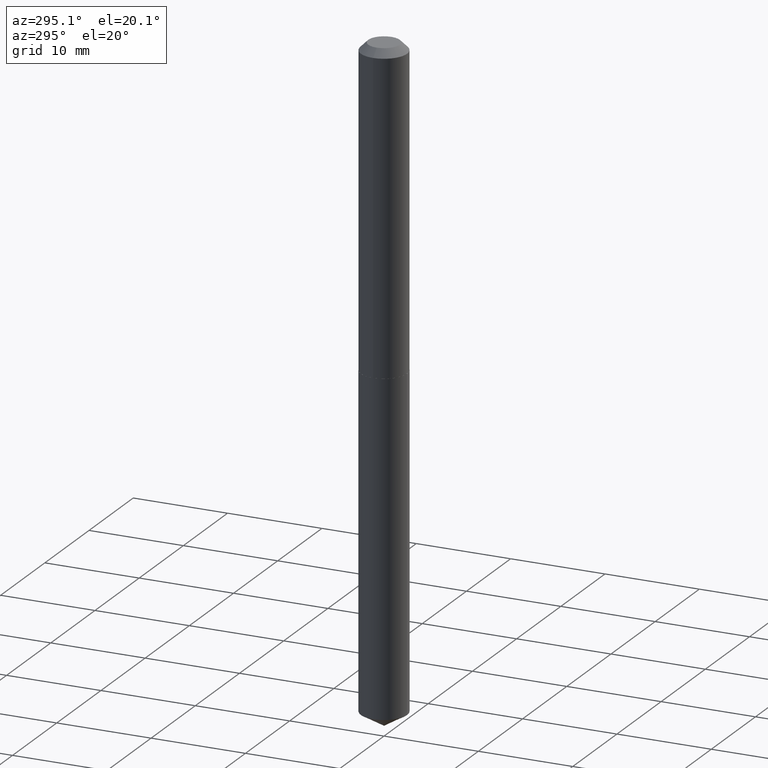
[diagram: clean part render]
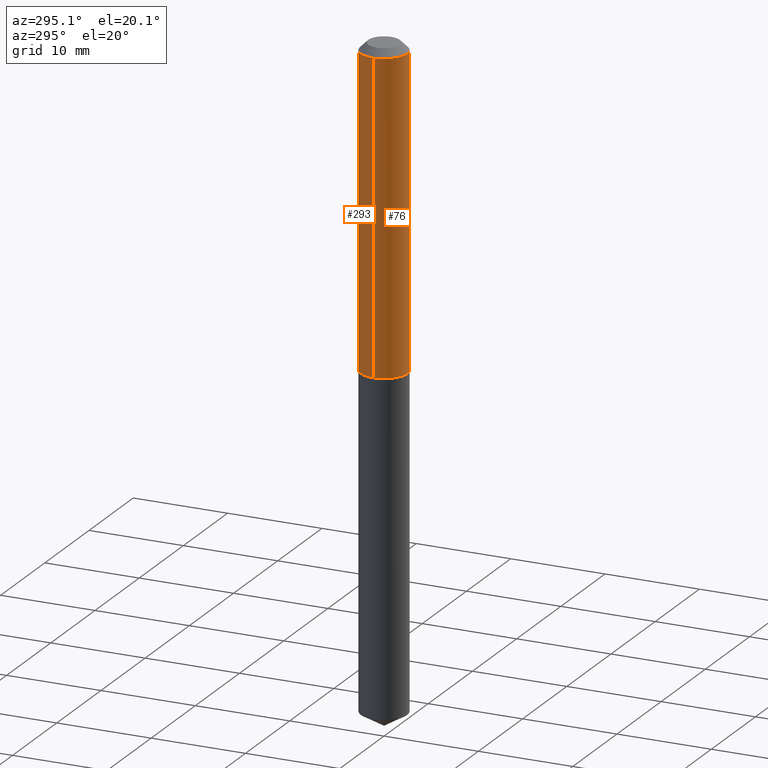
[diagram: same view with one multi-face feature highlighted, each face labeled with its STEP entity id]
A machine part, auxiliary view. The highlighted faces form ONE feature: a constant-radius fillet chain: 2 tangent blend faces with common blend radius 2.4575 mm. The faces share edges in the B-rep.
Their STEP definitions:
[1] entity #293 (Cylinder):
#8 = CARTESIAN_POINT ( 'NONE',  ( 0.09675000000000007205, -6.756016390661467302E-16, 4.717701030582570626E-30 ) ) ;
#10 = ORIENTED_EDGE ( 'NONE', *, *, #385, .F. ) ;
#12 = CIRCLE ( 'NONE', #135, 0.09675000000000000266 ) ;
#19 = DIRECTION ( 'NONE',  ( 1.000000000000000000, -6.982962677686265133E-15, 0.000000000000000000 ) ) ;
#39 = LINE ( 'NONE', #8, #185 ) ;
#92 = CARTESIAN_POINT ( 'NONE',  ( -0.09675000000000007205, 6.874500968478974418E-16, -4.759069699821624739E-30 ) ) ;
#93 = DIRECTION ( 'NONE',  ( 1.000000000000000000, -6.982962677686265922E-15, 0.000000000000000000 ) ) ;
#94 = VECTOR ( 'NONE', #362, 39.37007874015748143 ) ;
#110 = VERTEX_POINT ( 'NONE', #145 ) ;
#124 = CARTESIAN_POINT ( 'NONE',  ( -0.09675000000000000266, -1.667990501369159630E-15, -0.03125000000000019429 ) ) ;
#135 = AXIS2_PLACEMENT_3D ( 'NONE', #361, #240, #93 ) ;
#141 = EDGE_CURVE ( 'NONE', #378, #194, #332, .T. ) ;
#145 = CARTESIAN_POINT ( 'NONE',  ( 0.09675000000000014144, -5.277374043661413548E-15, -1.318000000000000060 ) ) ;
#149 = CARTESIAN_POINT ( 'NONE',  ( -0.09675000000000014144, -3.914322307747367897E-15, -1.318000000000000060 ) ) ;
#154 = AXIS2_PLACEMENT_3D ( 'NONE', #360, #323, #190 ) ;
#158 = ORIENTED_EDGE ( 'NONE', *, *, #377, .F. ) ;
#161 = CYLINDRICAL_SURFACE ( 'NONE', #154, 0.09675000000000007205 ) ;
#163 = ORIENTED_EDGE ( 'NONE', *, *, #348, .T. ) ;
#185 = VECTOR ( 'NONE', #275, 39.37007874015748143 ) ;
#190 = DIRECTION ( 'NONE',  ( 1.000000000000000000, -6.982962677686265922E-15, 4.876176775795935232E-29 ) ) ;
#191 = ORIENTED_EDGE ( 'NONE', *, *, #141, .T. ) ;
#193 = VERTEX_POINT ( 'NONE', #370 ) ;
#194 = VERTEX_POINT ( 'NONE', #124 ) ;
#195 = DIRECTION ( 'NONE',  ( -2.445468806185136597E-29, 3.491481338843145583E-15, 1.000000000000000000 ) ) ;
#240 = DIRECTION ( 'NONE',  ( -2.445468806185136597E-29, 3.491481338843145583E-15, 1.000000000000000000 ) ) ;
#275 = DIRECTION ( 'NONE',  ( -2.445468806185136877E-29, 3.491481338843145188E-15, 1.000000000000000000 ) ) ;
#289 = CARTESIAN_POINT ( 'NONE',  ( 3.223127886552009797E-29, -4.601772404595266423E-15, -1.318000000000000060 ) ) ;
#293 = ADVANCED_FACE ( 'NONE', ( #349 ), #161, .T. ) ;
#322 = EDGE_LOOP ( 'NONE', ( #163, #191, #158, #10 ) ) ;
#323 = DIRECTION ( 'NONE',  ( -2.445468806185136597E-29, 3.491481338843145583E-15, 1.000000000000000000 ) ) ;
#332 = LINE ( 'NONE', #92, #94 ) ;
#333 = AXIS2_PLACEMENT_3D ( 'NONE', #289, #195, #19 ) ;
#348 = EDGE_CURVE ( 'NONE', #110, #378, #383, .T. ) ;
#349 = FACE_OUTER_BOUND ( 'NONE', #322, .T. ) ;
#360 = CARTESIAN_POINT ( 'NONE',  ( 0.000000000000000000, 0.000000000000000000, 0.000000000000000000 ) ) ;
#361 = CARTESIAN_POINT ( 'NONE',  ( 7.642090019328598283E-31, -1.091087918388489651E-16, -0.03125000000000019429 ) ) ;
#362 = DIRECTION ( 'NONE',  ( -2.445468806185136877E-29, 3.491481338843145188E-15, 1.000000000000000000 ) ) ;
#370 = CARTESIAN_POINT ( 'NONE',  ( 0.09675000000000000266, -7.847104309049952392E-16, -0.03125000000000019429 ) ) ;
#377 = EDGE_CURVE ( 'NONE', #193, #194, #12, .T. ) ;
#378 = VERTEX_POINT ( 'NONE', #149 ) ;
#383 = CIRCLE ( 'NONE', #333, 0.09675000000000014144 ) ;
#385 = EDGE_CURVE ( 'NONE', #110, #193, #39, .T. ) ;
[2] entity #76 (Cylinder):
#8 = CARTESIAN_POINT ( 'NONE',  ( 0.09675000000000007205, -6.756016390661467302E-16, 4.717701030582570626E-30 ) ) ;
#22 = ORIENTED_EDGE ( 'NONE', *, *, #157, .T. ) ;
#26 = CARTESIAN_POINT ( 'NONE',  ( 3.223127886552009797E-29, -4.601772404595266423E-15, -1.318000000000000060 ) ) ;
#37 = EDGE_LOOP ( 'NONE', ( #50, #22, #255, #288 ) ) ;
#39 = LINE ( 'NONE', #8, #185 ) ;
#50 = ORIENTED_EDGE ( 'NONE', *, *, #141, .F. ) ;
#76 = ADVANCED_FACE ( 'NONE', ( #206 ), #390, .T. ) ;
#77 = AXIS2_PLACEMENT_3D ( 'NONE', #329, #199, #286 ) ;
#85 = DIRECTION ( 'NONE',  ( -2.445468806185136597E-29, 3.491481338843145583E-15, 1.000000000000000000 ) ) ;
#92 = CARTESIAN_POINT ( 'NONE',  ( -0.09675000000000007205, 6.874500968478974418E-16, -4.759069699821624739E-30 ) ) ;
#94 = VECTOR ( 'NONE', #362, 39.37007874015748143 ) ;
#110 = VERTEX_POINT ( 'NONE', #145 ) ;
#120 = DIRECTION ( 'NONE',  ( -2.445468806185136597E-29, 3.491481338843145583E-15, 1.000000000000000000 ) ) ;
#124 = CARTESIAN_POINT ( 'NONE',  ( -0.09675000000000000266, -1.667990501369159630E-15, -0.03125000000000019429 ) ) ;
#141 = EDGE_CURVE ( 'NONE', #378, #194, #332, .T. ) ;
#145 = CARTESIAN_POINT ( 'NONE',  ( 0.09675000000000014144, -5.277374043661413548E-15, -1.318000000000000060 ) ) ;
#149 = CARTESIAN_POINT ( 'NONE',  ( -0.09675000000000014144, -3.914322307747367897E-15, -1.318000000000000060 ) ) ;
#157 = EDGE_CURVE ( 'NONE', #378, #110, #281, .T. ) ;
#185 = VECTOR ( 'NONE', #275, 39.37007874015748143 ) ;
#193 = VERTEX_POINT ( 'NONE', #370 ) ;
#194 = VERTEX_POINT ( 'NONE', #124 ) ;
#199 = DIRECTION ( 'NONE',  ( -2.445468806185136597E-29, 3.491481338843145583E-15, 1.000000000000000000 ) ) ;
#206 = FACE_OUTER_BOUND ( 'NONE', #37, .T. ) ;
#230 = EDGE_CURVE ( 'NONE', #194, #193, #376, .T. ) ;
#246 = AXIS2_PLACEMENT_3D ( 'NONE', #389, #85, #336 ) ;
#255 = ORIENTED_EDGE ( 'NONE', *, *, #385, .T. ) ;
#271 = DIRECTION ( 'NONE',  ( 1.000000000000000000, -6.982962677686265133E-15, 0.000000000000000000 ) ) ;
#275 = DIRECTION ( 'NONE',  ( -2.445468806185136877E-29, 3.491481338843145188E-15, 1.000000000000000000 ) ) ;
#281 = CIRCLE ( 'NONE', #317, 0.09675000000000014144 ) ;
#286 = DIRECTION ( 'NONE',  ( 1.000000000000000000, -6.982962677686265922E-15, 0.000000000000000000 ) ) ;
#288 = ORIENTED_EDGE ( 'NONE', *, *, #230, .F. ) ;
#317 = AXIS2_PLACEMENT_3D ( 'NONE', #26, #120, #271 ) ;
#329 = CARTESIAN_POINT ( 'NONE',  ( 7.642090019328598283E-31, -1.091087918388489651E-16, -0.03125000000000019429 ) ) ;
#332 = LINE ( 'NONE', #92, #94 ) ;
#336 = DIRECTION ( 'NONE',  ( 1.000000000000000000, -6.982962677686265922E-15, 4.876176775795935232E-29 ) ) ;
#362 = DIRECTION ( 'NONE',  ( -2.445468806185136877E-29, 3.491481338843145188E-15, 1.000000000000000000 ) ) ;
#370 = CARTESIAN_POINT ( 'NONE',  ( 0.09675000000000000266, -7.847104309049952392E-16, -0.03125000000000019429 ) ) ;
#376 = CIRCLE ( 'NONE', #77, 0.09675000000000000266 ) ;
#378 = VERTEX_POINT ( 'NONE', #149 ) ;
#385 = EDGE_CURVE ( 'NONE', #110, #193, #39, .T. ) ;
#389 = CARTESIAN_POINT ( 'NONE',  ( 0.000000000000000000, 0.000000000000000000, 0.000000000000000000 ) ) ;
#390 = CYLINDRICAL_SURFACE ( 'NONE', #246, 0.09675000000000007205 ) ;